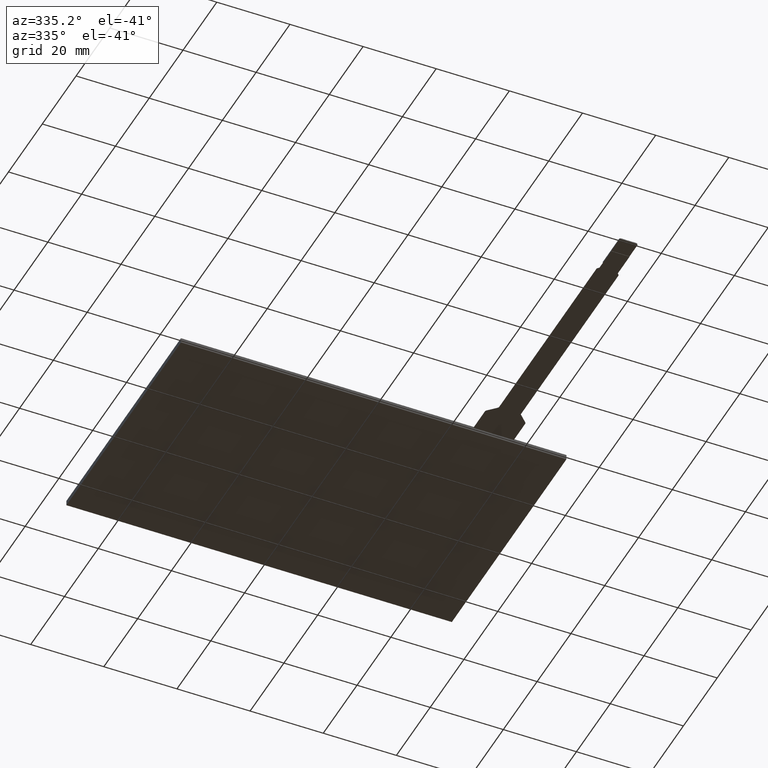
[diagram: clean part render]
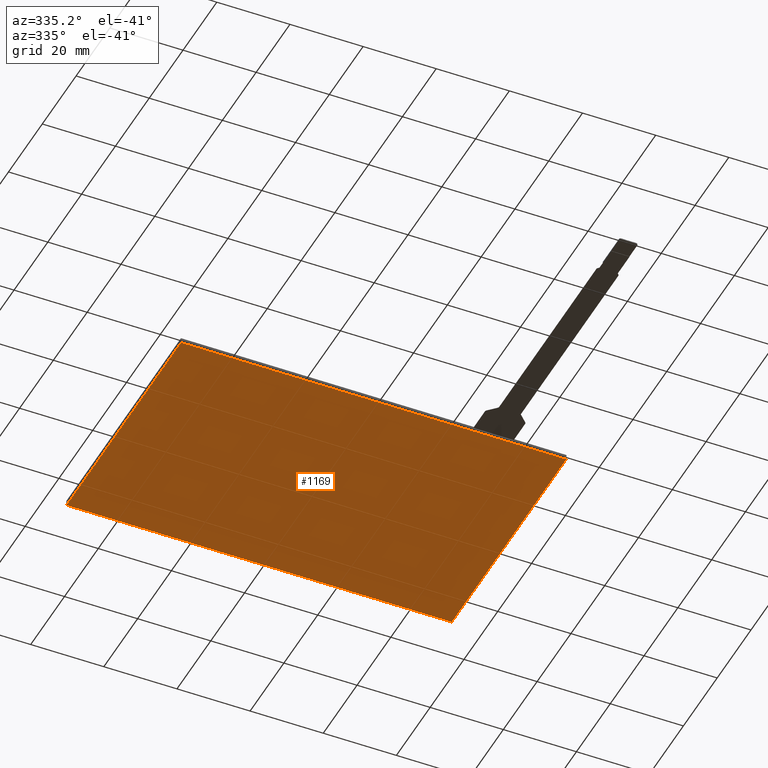
[diagram: same view with one face highlighted and labeled with its STEP entity id]
A machine part, auxiliary view. The second image highlights one B-rep face of the part: STEP entity #1169.
In plain terms, the highlighted planar face has unit normal (0, 0, -1).
Its self-contained STEP definition (entity closure, byte-faithful):
#85=PLANE('',#1276);
#144=FACE_OUTER_BOUND('',#206,.T.);
#206=EDGE_LOOP('',(#1093,#1094,#1095,#1096));
#334=LINE('',#1903,#468);
#336=LINE('',#1907,#470);
#338=LINE('',#1911,#472);
#340=LINE('',#1914,#474);
#468=VECTOR('',#1570,10.);
#470=VECTOR('',#1574,10.);
#472=VECTOR('',#1578,10.);
#474=VECTOR('',#1582,10.);
#607=VERTEX_POINT('',#1900);
#608=VERTEX_POINT('',#1902);
#609=VERTEX_POINT('',#1906);
#610=VERTEX_POINT('',#1910);
#766=EDGE_CURVE('',#608,#607,#334,.T.);
#768=EDGE_CURVE('',#609,#608,#336,.T.);
#770=EDGE_CURVE('',#610,#609,#338,.T.);
#772=EDGE_CURVE('',#607,#610,#340,.T.);
#1093=ORIENTED_EDGE('',*,*,#772,.T.);
#1094=ORIENTED_EDGE('',*,*,#770,.T.);
#1095=ORIENTED_EDGE('',*,*,#768,.T.);
#1096=ORIENTED_EDGE('',*,*,#766,.T.);
#1169=ADVANCED_FACE('',(#144),#85,.T.);
#1276=AXIS2_PLACEMENT_3D('',#1916,#1585,#1586);
#1570=DIRECTION('',(0.,1.,0.));
#1574=DIRECTION('',(-1.,-8.42674022485887E-17,0.));
#1578=DIRECTION('',(0.,-1.,0.));
#1582=DIRECTION('',(1.,0.,0.));
#1585=DIRECTION('center_axis',(0.,0.,-1.));
#1586=DIRECTION('ref_axis',(-1.,0.,0.));
#1900=CARTESIAN_POINT('',(-52.75,31.28,-1.4));
#1902=CARTESIAN_POINT('',(-52.75,-36.55,-1.4));
#1903=CARTESIAN_POINT('',(-52.75,31.28,-1.4));
#1906=CARTESIAN_POINT('',(52.65,-36.55,-1.4));
#1907=CARTESIAN_POINT('',(-52.75,-36.55,-1.4));
#1910=CARTESIAN_POINT('',(52.65,31.28,-1.4));
#1911=CARTESIAN_POINT('',(52.65,-36.55,-1.4));
#1914=CARTESIAN_POINT('',(52.65,31.28,-1.4));
#1916=CARTESIAN_POINT('Origin',(-0.0499999999999989,-2.63500000000001,-1.4));